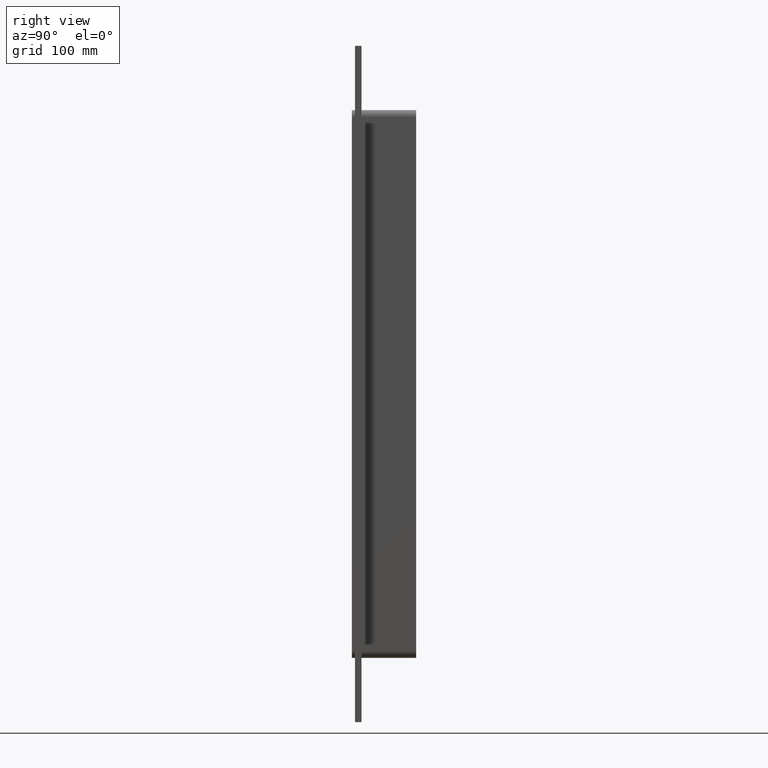
[diagram: clean part render]
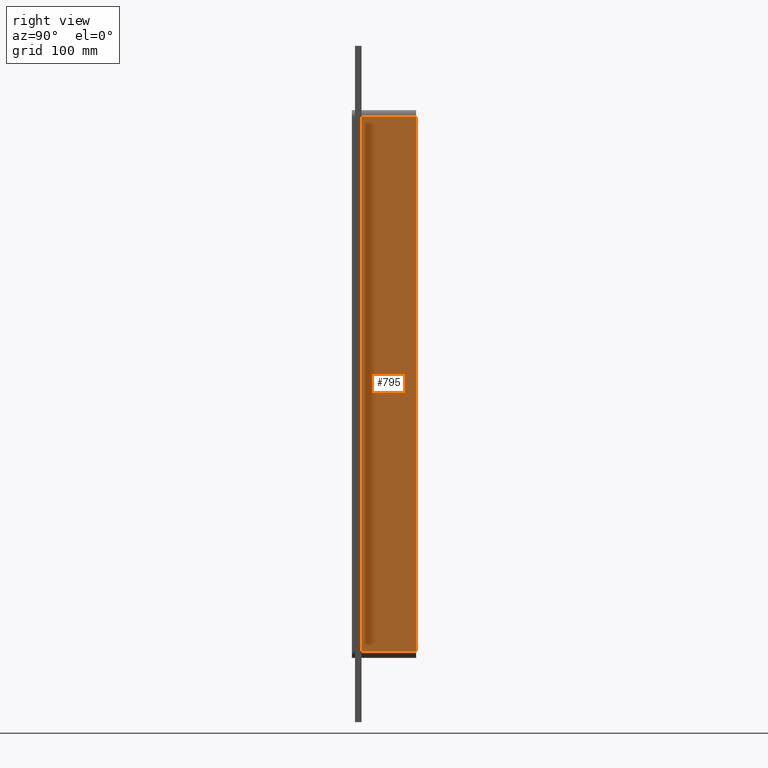
[diagram: same view with one face highlighted and labeled with its STEP entity id]
A machine part, right view. The second image highlights one B-rep face of the part: STEP entity #795.
In plain terms, the highlighted planar face has unit normal (1, 0, 0).
Its self-contained STEP definition (entity closure, byte-faithful):
#423=CARTESIAN_POINT('',(66.25,6.000000000000001,-249.24999999999997));
#424=VERTEX_POINT('',#423);
#432=CARTESIAN_POINT('',(66.25,6.000000000000001,249.25000000000006));
#433=VERTEX_POINT('',#432);
#434=CARTESIAN_POINT('',(66.25,6.000000000000001,249.25000000000006));
#435=DIRECTION('',(0.0,0.0,-1.0));
#436=VECTOR('',#435,498.5);
#437=LINE('',#434,#436);
#438=EDGE_CURVE('',#433,#424,#437,.T.);
#722=CARTESIAN_POINT('',(66.25,57.0,249.25000000000006));
#723=VERTEX_POINT('',#722);
#724=CARTESIAN_POINT('',(66.25,6.000000000000001,249.25000000000006));
#725=DIRECTION('',(0.0,1.0,0.0));
#726=VECTOR('',#725,51.0);
#727=LINE('',#724,#726);
#728=EDGE_CURVE('',#433,#723,#727,.T.);
#772=CARTESIAN_POINT('',(66.25,0.0,255.25000000000006));
#773=DIRECTION('',(1.0,0.0,0.0));
#774=DIRECTION('',(0.0,0.0,-1.0));
#775=AXIS2_PLACEMENT_3D('',#772,#773,#774);
#776=PLANE('',#775);
#777=ORIENTED_EDGE('',*,*,#438,.T.);
#778=CARTESIAN_POINT('',(66.25,57.0,-249.24999999999997));
#779=VERTEX_POINT('',#778);
#780=CARTESIAN_POINT('',(66.25,57.0,-249.24999999999997));
#781=DIRECTION('',(0.0,-1.0,0.0));
#782=VECTOR('',#781,51.0);
#783=LINE('',#780,#782);
#784=EDGE_CURVE('',#779,#424,#783,.T.);
#785=ORIENTED_EDGE('',*,*,#784,.F.);
#786=CARTESIAN_POINT('',(66.25,57.0,249.25000000000006));
#787=DIRECTION('',(0.0,0.0,-1.0));
#788=VECTOR('',#787,498.5);
#789=LINE('',#786,#788);
#790=EDGE_CURVE('',#723,#779,#789,.T.);
#791=ORIENTED_EDGE('',*,*,#790,.F.);
#792=ORIENTED_EDGE('',*,*,#728,.F.);
#793=EDGE_LOOP('',(#777,#785,#791,#792));
#794=FACE_OUTER_BOUND('',#793,.T.);
#795=ADVANCED_FACE('',(#794),#776,.T.);